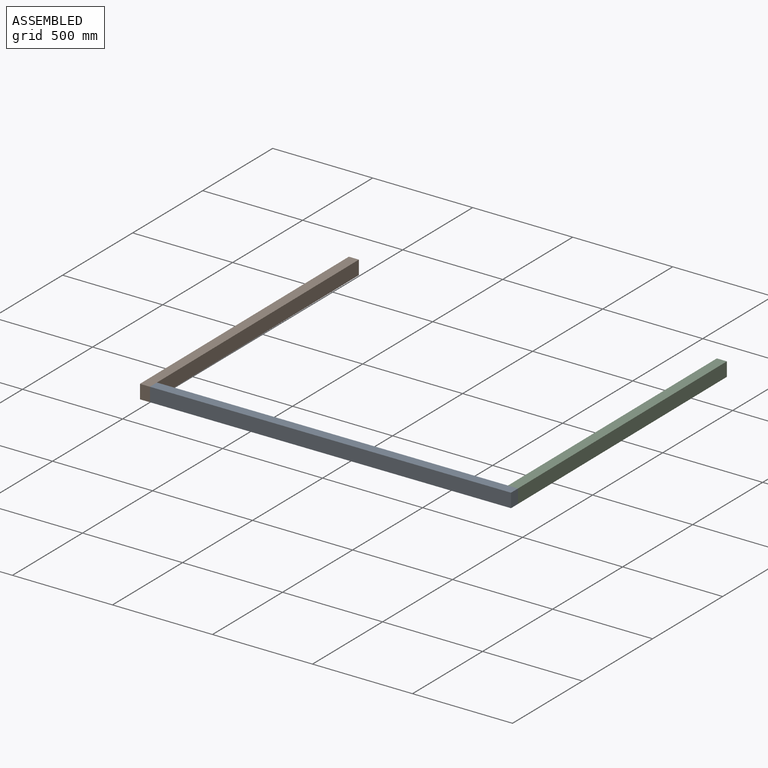
[diagram: assembled view]
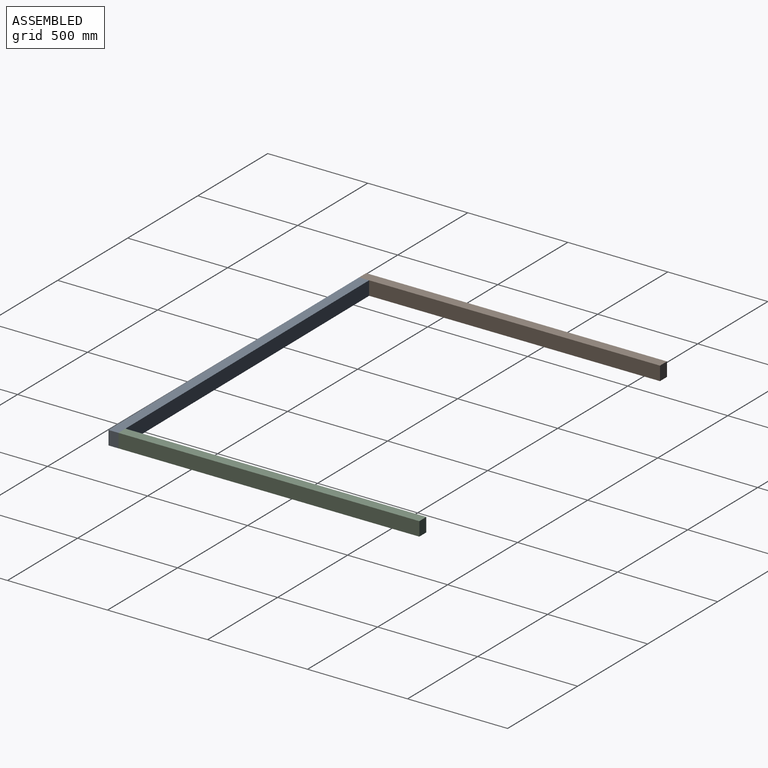
[diagram: assembled view, second angle]
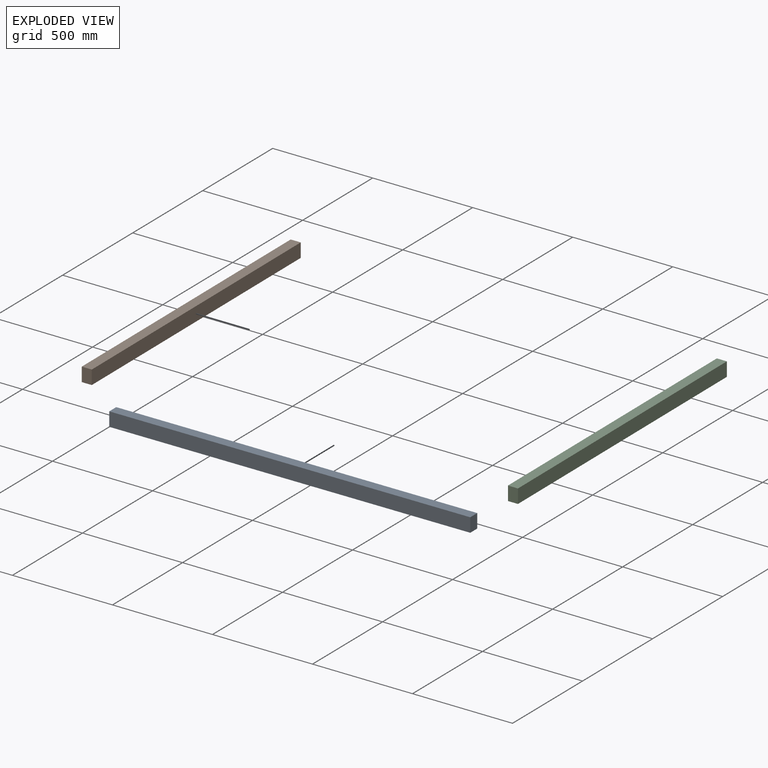
[diagram: exploded view]
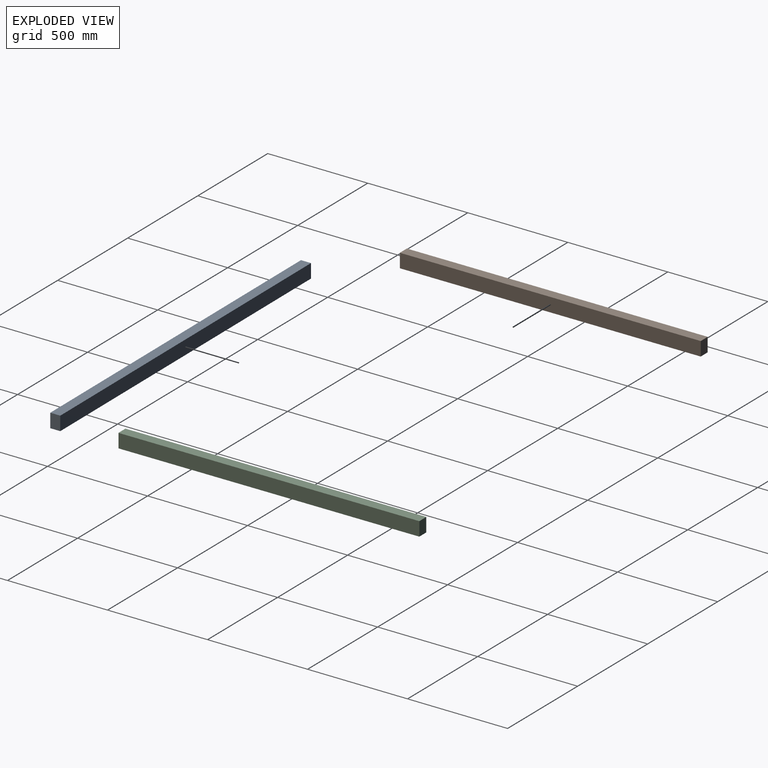
[diagram: exploded view, second angle]
ASSEMBLY  parts=3 mates=3
PART A: 6 faces, bbox 50x1800x70 mm
  f0: plane 1800x70mm, normal (-1,0,0), area 126000mm2, adj f1,f3,f4,f5
  f1: plane 1800x50mm, normal (0,0,-1), area 90000mm2, adj f0,f2,f4,f5
  f2: plane 1800x70mm, normal (1,0,0), area 126000mm2, adj f1,f3,f4,f5
  f3: plane 1800x50mm, normal (0,0,1), area 90000mm2, adj f0,f2,f4,f5
  f4: plane 70x50mm, normal (0,-1,0), area 3500mm2, adj f0,f1,f2,f3
  f5: plane 70x50mm, normal (0,1,0), area 3500mm2, adj f0,f1,f2,f3
PART B: 6 faces, bbox 50x1500x70 mm
  f0: plane 1500x70mm, normal (-1,0,0), area 105000mm2, adj f1,f3,f4,f5
  f1: plane 1500x50mm, normal (0,0,-1), area 75000mm2, adj f0,f2,f4,f5
  f2: plane 1500x70mm, normal (1,0,0), area 105000mm2, adj f1,f3,f4,f5
  f3: plane 1500x50mm, normal (0,0,1), area 75000mm2, adj f0,f2,f4,f5
  f4: plane 70x50mm, normal (0,-1,0), area 3500mm2, adj f0,f1,f2,f3
  f5: plane 70x50mm, normal (0,1,0), area 3500mm2, adj f0,f1,f2,f3
PART C: same geometry as B
PLACE A rot(axis=(0,0,1),90.2deg) t=(753.15,-1665.46,74.09)mm
PLACE B rot(axis=(0,0,1),0.2deg) t=(697.27,-165.67,74.09)mm
PLACE C rot(axis=(0,0,1),0.2deg) t=(2497.06,-108.62,74.09)mm
MATE parallel B.f3 <-> A.f3  axis (0,0,1) through (728.15,-1665.56,144.09)mm
MATE parallel C.f3 <-> A.f3  axis (0,0,1) through (2552.94,-1608.41,144.09)mm
MATE parallel A.f3 <-> B.f3  axis (0,0,1) through (753.15,-1665.46,144.09)mm
